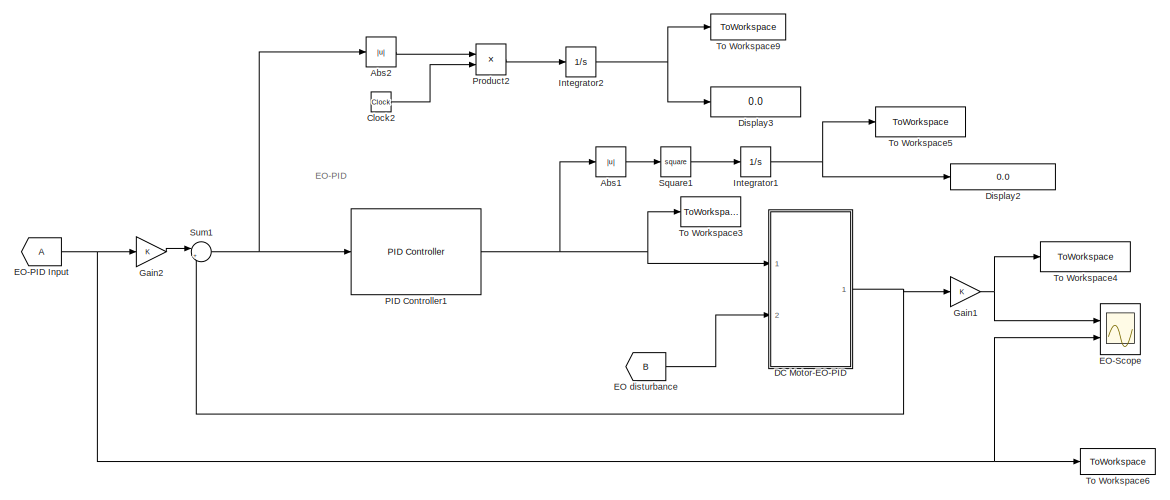
[diagram: root canvas - part 1/8, top right region]
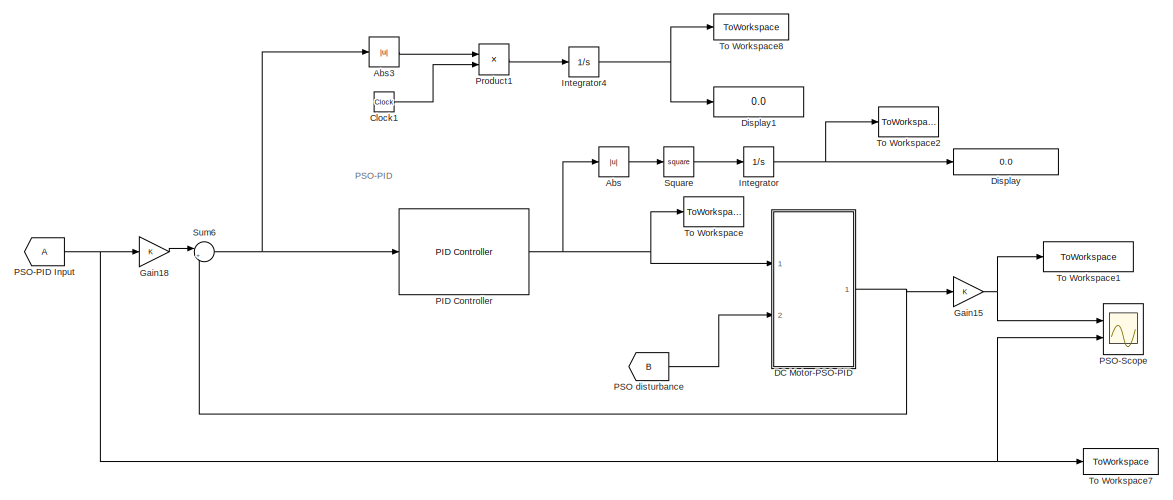
[diagram: root canvas - part 2/8, top right region]
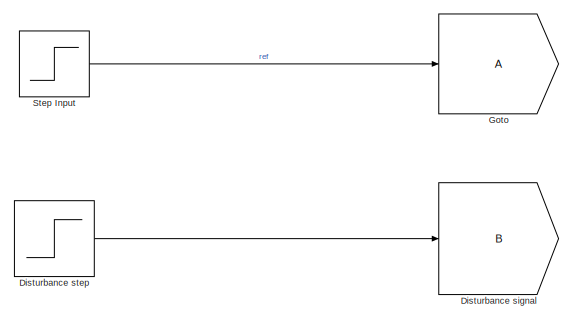
[diagram: root canvas - part 3/8, top left region]
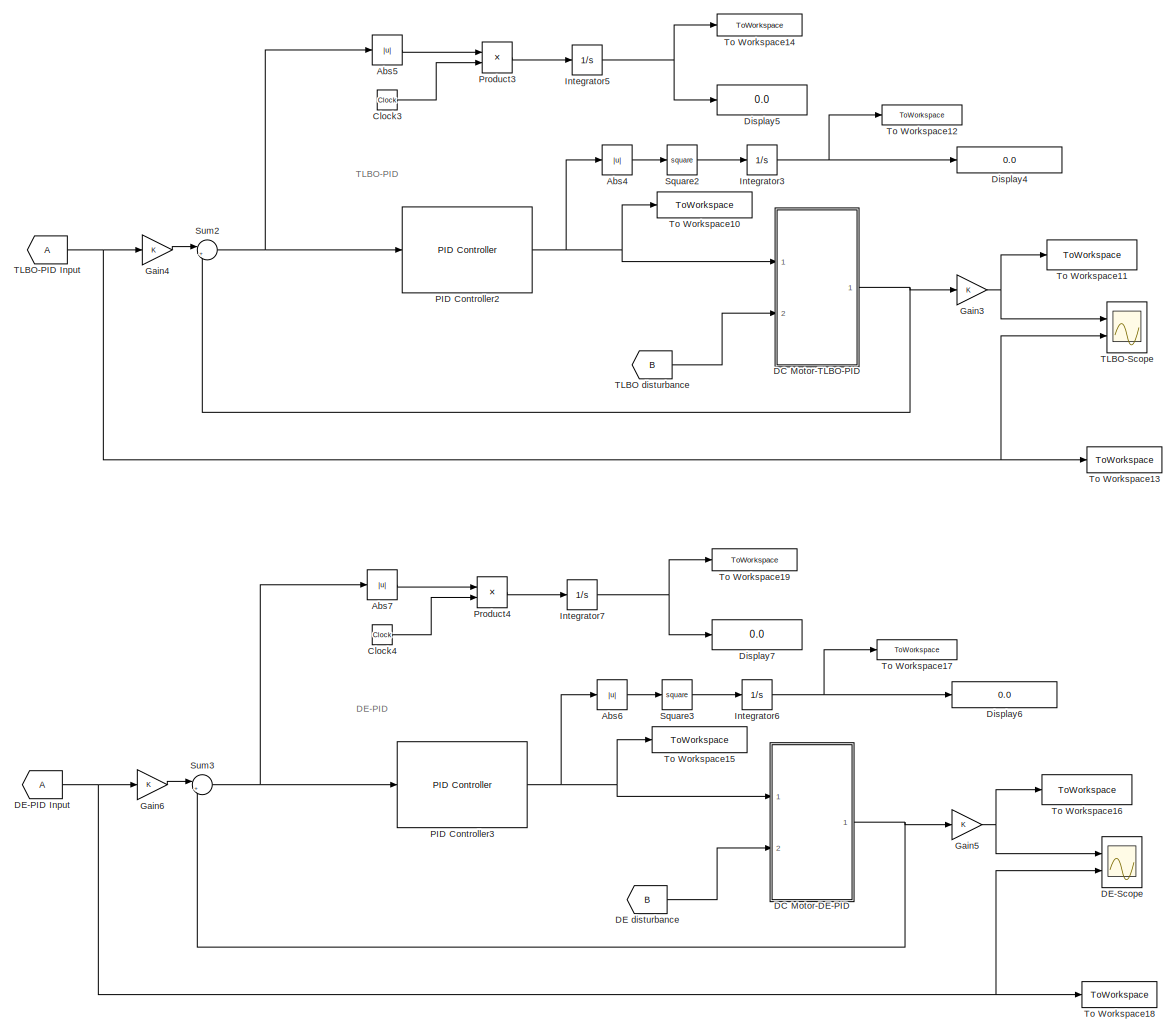
[diagram: root canvas - part 4/8, middle right region]
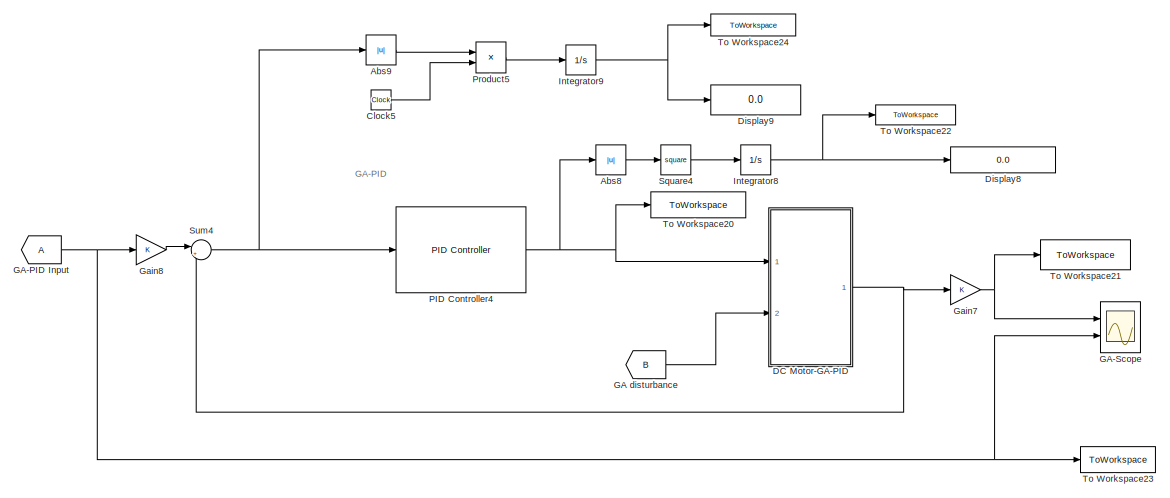
[diagram: root canvas - part 5/8, middle right region]
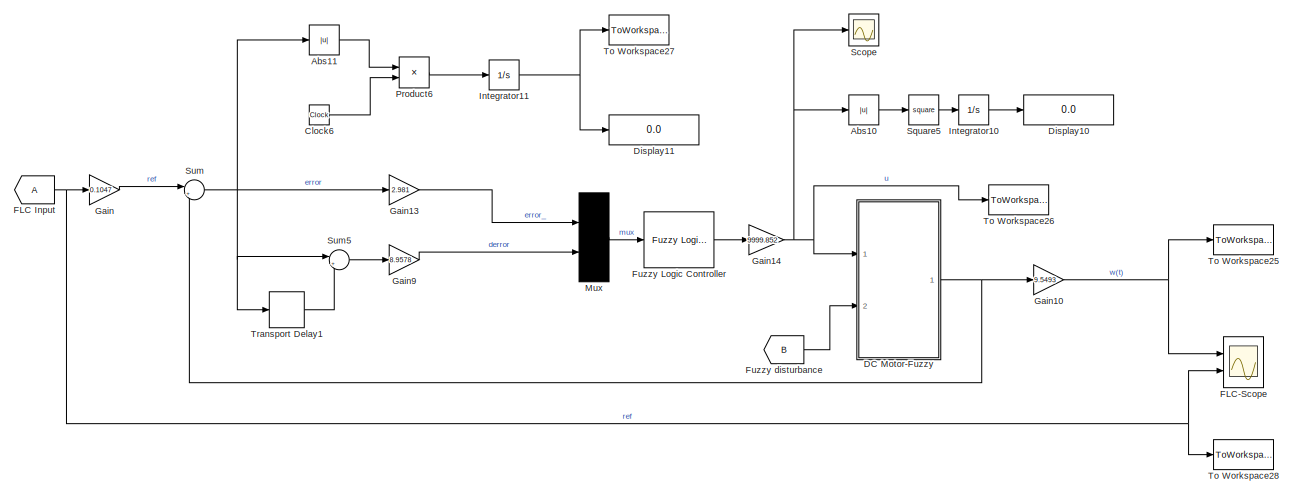
[diagram: root canvas - part 6/8, bottom right region]
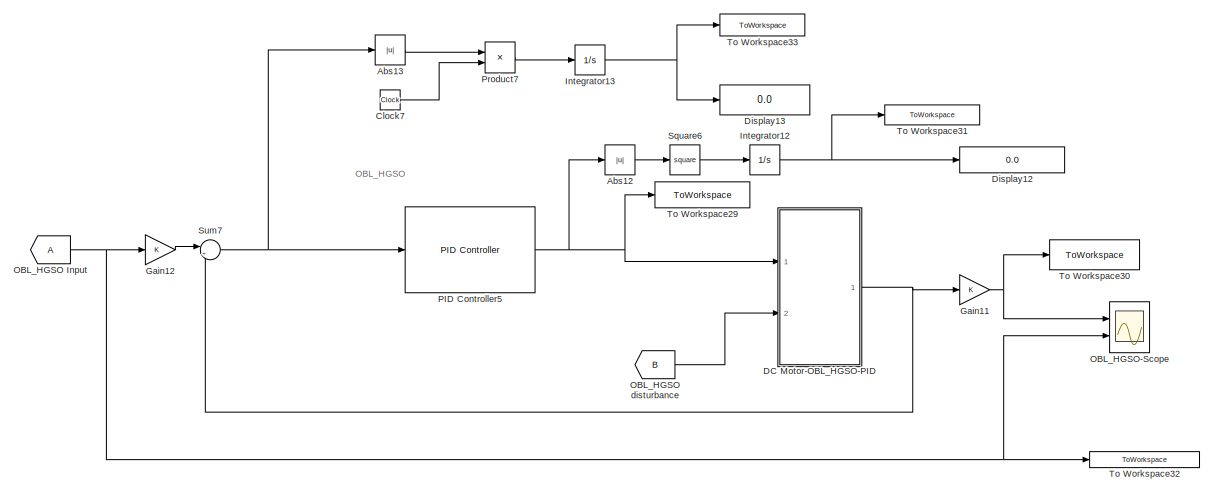
[diagram: root canvas - part 7/8, bottom right region]
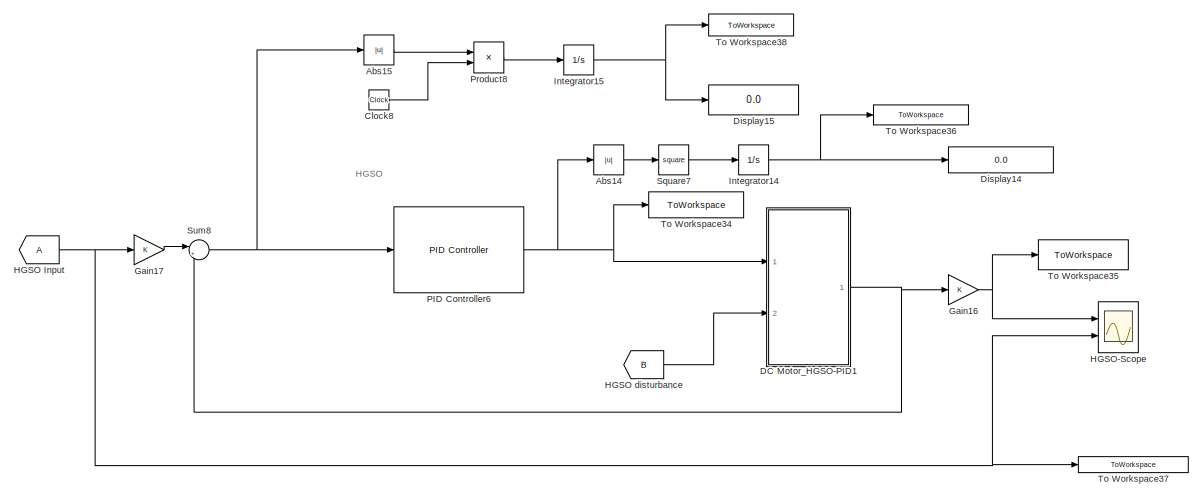
[diagram: root canvas - part 8/8, bottom right region]
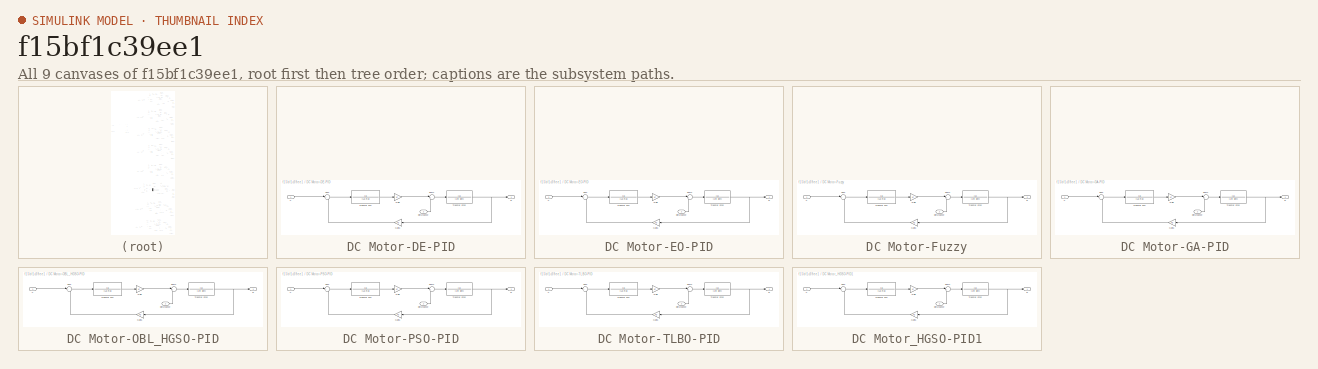
[diagram: thumbnail index - all 9 canvases of the model, root first then tree order]
MODEL slx_f15bf1c39ee1
KIND model
CONFIG AbsTol = auto
CONFIG EnableMultiTasking = off
CONFIG FixedStep = 1e-6
CONFIG MaxStep = auto
CONFIG MinStep = auto
CONFIG RelTol = 1e-5
CONFIG SampleTimeConstraint = Unconstrained
CONFIG Solver = VariableStepAuto
CONFIG SolverName = VariableStepAuto
CONFIG StartTime = 0.0
CONFIG StopTime = 1.2
BLOCK [Abs] Abs
  SaturateOnIntegerOverflow = off
BLOCK [Abs] Abs1
  SaturateOnIntegerOverflow = off
BLOCK [Abs] Abs10
  SaturateOnIntegerOverflow = off
BLOCK [Abs] Abs11
  SaturateOnIntegerOverflow = off
BLOCK [Abs] Abs12
  SaturateOnIntegerOverflow = off
BLOCK [Abs] Abs13
  SaturateOnIntegerOverflow = off
BLOCK [Abs] Abs14
  SaturateOnIntegerOverflow = off
BLOCK [Abs] Abs15
  SaturateOnIntegerOverflow = off
BLOCK [Abs] Abs2
  SaturateOnIntegerOverflow = off
BLOCK [Abs] Abs3
  SaturateOnIntegerOverflow = off
BLOCK [Abs] Abs4
  SaturateOnIntegerOverflow = off
BLOCK [Abs] Abs5
  SaturateOnIntegerOverflow = off
BLOCK [Abs] Abs6
  SaturateOnIntegerOverflow = off
BLOCK [Abs] Abs7
  SaturateOnIntegerOverflow = off
BLOCK [Abs] Abs8
  SaturateOnIntegerOverflow = off
BLOCK [Abs] Abs9
  SaturateOnIntegerOverflow = off
BLOCK [Clock] Clock1
BLOCK [Clock] Clock2
BLOCK [Clock] Clock3
BLOCK [Clock] Clock4
BLOCK [Clock] Clock5
BLOCK [Clock] Clock6
BLOCK [Clock] Clock7
BLOCK [Clock] Clock8
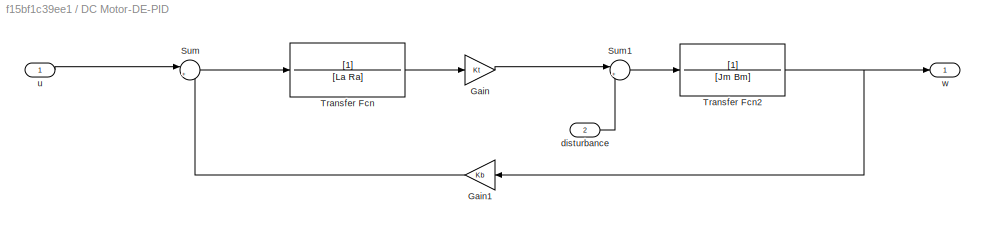
BLOCK [SubSystem] DC Motor-DE-PID
  Ports = [2, 1]
  RequestExecContextInheritance = off
BLOCK [Gain] DC Motor-DE-PID/Gain
  Gain = Kt
  OutDataTypeStr = Inherit: Inherit via internal rule
  ParamDataTypeStr = Inherit: Inherit via internal rule
  SaturateOnIntegerOverflow = off
BLOCK [Gain] DC Motor-DE-PID/Gain1
  Gain = Kb
  OutDataTypeStr = Inherit: Inherit via internal rule
  ParamDataTypeStr = Inherit: Inherit via internal rule
  SaturateOnIntegerOverflow = off
BLOCK [Sum] DC Motor-DE-PID/Sum
  IconShape = round
  InputSameDT = off
  Inputs = |+-
  OutDataTypeStr = Inherit: Inherit via internal rule
  Ports = [2, 1]
  SaturateOnIntegerOverflow = off
BLOCK [Sum] DC Motor-DE-PID/Sum1
  IconShape = round
  InputSameDT = off
  Inputs = |+-
  OutDataTypeStr = Inherit: Inherit via internal rule
  Ports = [2, 1]
  SaturateOnIntegerOverflow = off
BLOCK [TransferFcn] DC Motor-DE-PID/Transfer Fcn
  Denominator = [La Ra]
BLOCK [TransferFcn] DC Motor-DE-PID/Transfer Fcn2
  Denominator = [Jm Bm]
BLOCK [Inport] DC Motor-DE-PID/disturbance
  IconDisplay = Port number
  Port = 2
BLOCK [Inport] DC Motor-DE-PID/u
  IconDisplay = Port number
BLOCK [Outport] DC Motor-DE-PID/w
  IconDisplay = Port number
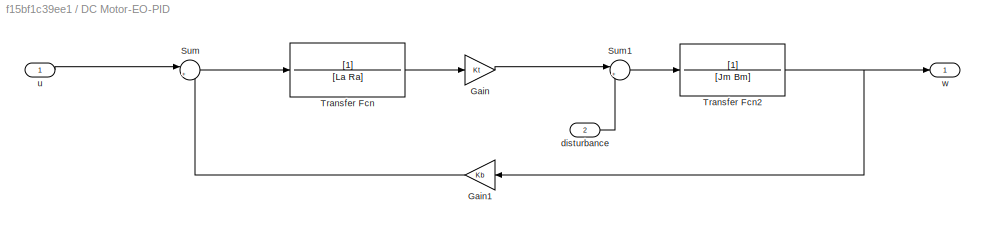
BLOCK [SubSystem] DC Motor-EO-PID
  Ports = [2, 1]
  RequestExecContextInheritance = off
BLOCK [Gain] DC Motor-EO-PID/Gain
  Gain = Kt
  OutDataTypeStr = Inherit: Inherit via internal rule
  ParamDataTypeStr = Inherit: Inherit via internal rule
  SaturateOnIntegerOverflow = off
BLOCK [Gain] DC Motor-EO-PID/Gain1
  Gain = Kb
  OutDataTypeStr = Inherit: Inherit via internal rule
  ParamDataTypeStr = Inherit: Inherit via internal rule
  SaturateOnIntegerOverflow = off
BLOCK [Sum] DC Motor-EO-PID/Sum
  IconShape = round
  InputSameDT = off
  Inputs = |+-
  OutDataTypeStr = Inherit: Inherit via internal rule
  Ports = [2, 1]
  SaturateOnIntegerOverflow = off
BLOCK [Sum] DC Motor-EO-PID/Sum1
  IconShape = round
  InputSameDT = off
  Inputs = |+-
  OutDataTypeStr = Inherit: Inherit via internal rule
  Ports = [2, 1]
  SaturateOnIntegerOverflow = off
BLOCK [TransferFcn] DC Motor-EO-PID/Transfer Fcn
  Denominator = [La Ra]
BLOCK [TransferFcn] DC Motor-EO-PID/Transfer Fcn2
  Denominator = [Jm Bm]
BLOCK [Inport] DC Motor-EO-PID/disturbance
  IconDisplay = Port number
  Port = 2
BLOCK [Inport] DC Motor-EO-PID/u
  IconDisplay = Port number
BLOCK [Outport] DC Motor-EO-PID/w
  IconDisplay = Port number
BLOCK [SubSystem] DC Motor-Fuzzy
  Ports = [2, 1]
  RequestExecContextInheritance = off
BLOCK [Gain] DC Motor-Fuzzy/Gain
  Gain = Kt
  OutDataTypeStr = Inherit: Inherit via internal rule
  ParamDataTypeStr = Inherit: Inherit via internal rule
  SaturateOnIntegerOverflow = off
BLOCK [Gain] DC Motor-Fuzzy/Gain1
  Gain = Kb
  OutDataTypeStr = Inherit: Inherit via internal rule
  ParamDataTypeStr = Inherit: Inherit via internal rule
  SaturateOnIntegerOverflow = off
BLOCK [Sum] DC Motor-Fuzzy/Sum
  IconShape = round
  InputSameDT = off
  Inputs = |+-
  OutDataTypeStr = Inherit: Inherit via internal rule
  Ports = [2, 1]
  SaturateOnIntegerOverflow = off
BLOCK [Sum] DC Motor-Fuzzy/Sum1
  IconShape = round
  InputSameDT = off
  Inputs = |+-
  OutDataTypeStr = Inherit: Inherit via internal rule
  Ports = [2, 1]
  SaturateOnIntegerOverflow = off
BLOCK [TransferFcn] DC Motor-Fuzzy/Transfer Fcn
  Denominator = [La Ra]
BLOCK [TransferFcn] DC Motor-Fuzzy/Transfer Fcn2
  Denominator = [Jm Bm]
BLOCK [Inport] DC Motor-Fuzzy/disturbance
  IconDisplay = Port number
  Port = 2
BLOCK [Inport] DC Motor-Fuzzy/u
  IconDisplay = Port number
BLOCK [Outport] DC Motor-Fuzzy/w
  IconDisplay = Port number
BLOCK [SubSystem] DC Motor-GA-PID
  Ports = [2, 1]
  RequestExecContextInheritance = off
BLOCK [Gain] DC Motor-GA-PID/Gain
  Gain = Kt
  OutDataTypeStr = Inherit: Inherit via internal rule
  ParamDataTypeStr = Inherit: Inherit via internal rule
  SaturateOnIntegerOverflow = off
BLOCK [Gain] DC Motor-GA-PID/Gain1
  Gain = Kb
  OutDataTypeStr = Inherit: Inherit via internal rule
  ParamDataTypeStr = Inherit: Inherit via internal rule
  SaturateOnIntegerOverflow = off
BLOCK [Sum] DC Motor-GA-PID/Sum
  IconShape = round
  InputSameDT = off
  Inputs = |+-
  OutDataTypeStr = Inherit: Inherit via internal rule
  Ports = [2, 1]
  SaturateOnIntegerOverflow = off
BLOCK [Sum] DC Motor-GA-PID/Sum1
  IconShape = round
  InputSameDT = off
  Inputs = |+-
  OutDataTypeStr = Inherit: Inherit via internal rule
  Ports = [2, 1]
  SaturateOnIntegerOverflow = off
BLOCK [TransferFcn] DC Motor-GA-PID/Transfer Fcn
  Denominator = [La Ra]
BLOCK [TransferFcn] DC Motor-GA-PID/Transfer Fcn2
  Denominator = [Jm Bm]
BLOCK [Inport] DC Motor-GA-PID/disturbance
  IconDisplay = Port number
  Port = 2
BLOCK [Inport] DC Motor-GA-PID/u
  IconDisplay = Port number
BLOCK [Outport] DC Motor-GA-PID/w
  IconDisplay = Port number
BLOCK [SubSystem] DC Motor-OBL_HGSO-PID
  Ports = [2, 1]
  RequestExecContextInheritance = off
BLOCK [Gain] DC Motor-OBL_HGSO-PID/Gain
  Gain = Kt
  OutDataTypeStr = Inherit: Inherit via internal rule
  ParamDataTypeStr = Inherit: Inherit via internal rule
  SaturateOnIntegerOverflow = off
BLOCK [Gain] DC Motor-OBL_HGSO-PID/Gain1
  Gain = Kb
  OutDataTypeStr = Inherit: Inherit via internal rule
  ParamDataTypeStr = Inherit: Inherit via internal rule
  SaturateOnIntegerOverflow = off
BLOCK [Sum] DC Motor-OBL_HGSO-PID/Sum
  IconShape = round
  InputSameDT = off
  Inputs = |+-
  OutDataTypeStr = Inherit: Inherit via internal rule
  Ports = [2, 1]
  SaturateOnIntegerOverflow = off
BLOCK [Sum] DC Motor-OBL_HGSO-PID/Sum1
  IconShape = round
  InputSameDT = off
  Inputs = |+-
  OutDataTypeStr = Inherit: Inherit via internal rule
  Ports = [2, 1]
  SaturateOnIntegerOverflow = off
BLOCK [TransferFcn] DC Motor-OBL_HGSO-PID/Transfer Fcn
  Denominator = [La Ra]
BLOCK [TransferFcn] DC Motor-OBL_HGSO-PID/Transfer Fcn2
  Denominator = [Jm Bm]
BLOCK [Inport] DC Motor-OBL_HGSO-PID/disturbance
  IconDisplay = Port number
  Port = 2
BLOCK [Inport] DC Motor-OBL_HGSO-PID/u
  IconDisplay = Port number
BLOCK [Outport] DC Motor-OBL_HGSO-PID/w
  IconDisplay = Port number
BLOCK [SubSystem] DC Motor-PSO-PID
  Ports = [2, 1]
  RequestExecContextInheritance = off
BLOCK [Gain] DC Motor-PSO-PID/Gain
  Gain = Kt
  OutDataTypeStr = Inherit: Inherit via internal rule
  ParamDataTypeStr = Inherit: Inherit via internal rule
  SaturateOnIntegerOverflow = off
BLOCK [Gain] DC Motor-PSO-PID/Gain1
  Gain = Kb
  OutDataTypeStr = Inherit: Inherit via internal rule
  ParamDataTypeStr = Inherit: Inherit via internal rule
  SaturateOnIntegerOverflow = off
BLOCK [Sum] DC Motor-PSO-PID/Sum
  IconShape = round
  InputSameDT = off
  Inputs = |+-
  OutDataTypeStr = Inherit: Inherit via internal rule
  Ports = [2, 1]
  SaturateOnIntegerOverflow = off
BLOCK [Sum] DC Motor-PSO-PID/Sum1
  IconShape = round
  InputSameDT = off
  Inputs = |+-
  OutDataTypeStr = Inherit: Inherit via internal rule
  Ports = [2, 1]
  SaturateOnIntegerOverflow = off
BLOCK [TransferFcn] DC Motor-PSO-PID/Transfer Fcn
  Denominator = [La Ra]
BLOCK [TransferFcn] DC Motor-PSO-PID/Transfer Fcn2
  Denominator = [Jm Bm]
BLOCK [Inport] DC Motor-PSO-PID/disturbance
  IconDisplay = Port number
  Port = 2
BLOCK [Inport] DC Motor-PSO-PID/u
  IconDisplay = Port number
BLOCK [Outport] DC Motor-PSO-PID/w
  IconDisplay = Port number
BLOCK [SubSystem] DC Motor-TLBO-PID
  Ports = [2, 1]
  RequestExecContextInheritance = off
BLOCK [Gain] DC Motor-TLBO-PID/Gain
  Gain = Kt
  OutDataTypeStr = Inherit: Inherit via internal rule
  ParamDataTypeStr = Inherit: Inherit via internal rule
  SaturateOnIntegerOverflow = off
BLOCK [Gain] DC Motor-TLBO-PID/Gain1
  Gain = Kb
  OutDataTypeStr = Inherit: Inherit via internal rule
  ParamDataTypeStr = Inherit: Inherit via internal rule
  SaturateOnIntegerOverflow = off
BLOCK [Sum] DC Motor-TLBO-PID/Sum
  IconShape = round
  InputSameDT = off
  Inputs = |+-
  OutDataTypeStr = Inherit: Inherit via internal rule
  Ports = [2, 1]
  SaturateOnIntegerOverflow = off
BLOCK [Sum] DC Motor-TLBO-PID/Sum1
  IconShape = round
  InputSameDT = off
  Inputs = |+-
  OutDataTypeStr = Inherit: Inherit via internal rule
  Ports = [2, 1]
  SaturateOnIntegerOverflow = off
BLOCK [TransferFcn] DC Motor-TLBO-PID/Transfer Fcn
  Denominator = [La Ra]
BLOCK [TransferFcn] DC Motor-TLBO-PID/Transfer Fcn2
  Denominator = [Jm Bm]
BLOCK [Inport] DC Motor-TLBO-PID/disturbance
  IconDisplay = Port number
  Port = 2
BLOCK [Inport] DC Motor-TLBO-PID/u
  IconDisplay = Port number
BLOCK [Outport] DC Motor-TLBO-PID/w
  IconDisplay = Port number
BLOCK [SubSystem] DC Motor_HGSO-PID1
  Ports = [2, 1]
  RequestExecContextInheritance = off
BLOCK [Gain] DC Motor_HGSO-PID1/Gain
  Gain = Kt
  OutDataTypeStr = Inherit: Inherit via internal rule
  ParamDataTypeStr = Inherit: Inherit via internal rule
  SaturateOnIntegerOverflow = off
BLOCK [Gain] DC Motor_HGSO-PID1/Gain1
  Gain = Kb
  OutDataTypeStr = Inherit: Inherit via internal rule
  ParamDataTypeStr = Inherit: Inherit via internal rule
  SaturateOnIntegerOverflow = off
BLOCK [Sum] DC Motor_HGSO-PID1/Sum
  IconShape = round
  InputSameDT = off
  Inputs = |+-
  OutDataTypeStr = Inherit: Inherit via internal rule
  Ports = [2, 1]
  SaturateOnIntegerOverflow = off
BLOCK [Sum] DC Motor_HGSO-PID1/Sum1
  IconShape = round
  InputSameDT = off
  Inputs = |+-
  OutDataTypeStr = Inherit: Inherit via internal rule
  Ports = [2, 1]
  SaturateOnIntegerOverflow = off
BLOCK [TransferFcn] DC Motor_HGSO-PID1/Transfer Fcn
  Denominator = [La Ra]
BLOCK [TransferFcn] DC Motor_HGSO-PID1/Transfer Fcn2
  Denominator = [Jm Bm]
BLOCK [Inport] DC Motor_HGSO-PID1/disturbance
  IconDisplay = Port number
  Port = 2
BLOCK [Inport] DC Motor_HGSO-PID1/u
  IconDisplay = Port number
BLOCK [Outport] DC Motor_HGSO-PID1/w
  IconDisplay = Port number
BLOCK [From] DE disturbance
  GotoTag = B
BLOCK [From] DE-PID Input
BLOCK [Scope] DE-Scope
  Floating = off
  NumInputPorts = 2
  Ports = [2]
  ScopeSpecificationString = Simulink.scopes.TimeScopeBlockCfg('CurrentConfiguration', extmgr.ConfigurationSet(extmgr.Configuration('Core','General UI',true),extmgr.Configuration('Core','Source UI',true),extmgr.Configuration('Sources','WiredSimulink',true,'DataLoggingVariableName','ScopeData4'),extmgr.Configuration('Visuals','Time Domain',true,'SerializedDisplays',{struct('MinYLimReal','-0.125','MaxYLimReal','1.125','YLabelRe...<+1454ch>
BLOCK [Display] Display
  Decimation = 1
  Ports = [1]
BLOCK [Display] Display1
  Decimation = 1
  Ports = [1]
BLOCK [Display] Display10
  Decimation = 1
  Ports = [1]
BLOCK [Display] Display11
  Decimation = 1
  Ports = [1]
BLOCK [Display] Display12
  Decimation = 1
  Ports = [1]
BLOCK [Display] Display13
  Decimation = 1
  Ports = [1]
BLOCK [Display] Display14
  Decimation = 1
  Ports = [1]
BLOCK [Display] Display15
  Decimation = 1
  Ports = [1]
BLOCK [Display] Display2
  Decimation = 1
  Ports = [1]
BLOCK [Display] Display3
  Decimation = 1
  Ports = [1]
BLOCK [Display] Display4
  Decimation = 1
  Ports = [1]
BLOCK [Display] Display5
  Decimation = 1
  Ports = [1]
BLOCK [Display] Display6
  Decimation = 1
  Ports = [1]
BLOCK [Display] Display7
  Decimation = 1
  Ports = [1]
BLOCK [Display] Display8
  Decimation = 1
  Ports = [1]
BLOCK [Display] Display9
  Decimation = 1
  Ports = [1]
BLOCK [Goto] Disturbance signal
  GotoTag = B
BLOCK [Step] Disturbance step
  After = 0
  SampleTime = 0
  Time = 0
BLOCK [From] EO disturbance
  GotoTag = B
BLOCK [From] EO-PID Input
BLOCK [Scope] EO-Scope
  Floating = off
  NumInputPorts = 2
  Ports = [2]
  ScopeSpecificationString = Simulink.scopes.TimeScopeBlockCfg('CurrentConfiguration', extmgr.ConfigurationSet(extmgr.Configuration('Core','General UI',true),extmgr.Configuration('Core','Source UI',true),extmgr.Configuration('Sources','WiredSimulink',true),extmgr.Configuration('Visuals','Time Domain',true,'SerializedDisplays',{struct('MinYLimReal','-0.13643','MaxYLimReal','1.12627','YLabelReal','','MinYLimMag','0.00000','MaxY...<+1427ch>
BLOCK [From] FLC Input
BLOCK [Scope] FLC-Scope
  Floating = off
  NumInputPorts = 2
  Ports = [2]
  ScopeSpecificationString = Simulink.scopes.TimeScopeBlockCfg('CurrentConfiguration', extmgr.ConfigurationSet(extmgr.Configuration('Core','General UI',true),extmgr.Configuration('Core','Source UI',true),extmgr.Configuration('Sources','WiredSimulink',true,'DataLoggingVariableName','ScopeData1'),extmgr.Configuration('Visuals','Time Domain',true,'SerializedDisplays',{struct('MinYLimReal','-0.125','MaxYLimReal','1.125','YLabelRe...<+1475ch>
BLOCK [Reference] Fuzzy Logic Controller  REF=fuzblock/Fuzzy Logic   (lib defined in mdl_858b3b3e7478)
Controller
  Ports = [1, 1]
  SourceBlock = fuzblock/Fuzzy Logic \nController
  SourceProductBaseCode = FL
  SourceProductName = Fuzzy Logic Toolbox
  SourceType = Fuzzy Inference System
BLOCK [From] Fuzzy disturbance
  GotoTag = B
BLOCK [From] GA disturbance
  GotoTag = B
BLOCK [From] GA-PID Input
BLOCK [Scope] GA-Scope
  Floating = off
  NumInputPorts = 2
  Ports = [2]
  ScopeSpecificationString = Simulink.scopes.TimeScopeBlockCfg('CurrentConfiguration', extmgr.ConfigurationSet(extmgr.Configuration('Core','General UI',true),extmgr.Configuration('Core','Source UI',true),extmgr.Configuration('Sources','WiredSimulink',true,'DataLoggingVariableName','ScopeData5'),extmgr.Configuration('Visuals','Time Domain',true,'SerializedDisplays',{struct('MinYLimReal','-0.125','MaxYLimReal','1.125','YLabelRe...<+1454ch>
BLOCK [Gain] Gain
  Gain = 0.1047
  OutDataTypeStr = Inherit: Inherit via internal rule
  ParamDataTypeStr = Inherit: Inherit via internal rule
  SaturateOnIntegerOverflow = off
BLOCK [Gain] Gain1
  OutDataTypeStr = Inherit: Inherit via internal rule
  ParamDataTypeStr = Inherit: Inherit via internal rule
  SaturateOnIntegerOverflow = off
BLOCK [Gain] Gain10
  Gain = 9.5493
  OutDataTypeStr = Inherit: Inherit via internal rule
  ParamDataTypeStr = Inherit: Inherit via internal rule
  SaturateOnIntegerOverflow = off
BLOCK [Gain] Gain11
  OutDataTypeStr = Inherit: Inherit via internal rule
  ParamDataTypeStr = Inherit: Inherit via internal rule
  SaturateOnIntegerOverflow = off
BLOCK [Gain] Gain12
  OutDataTypeStr = Inherit: Inherit via internal rule
  ParamDataTypeStr = Inherit: Inherit via internal rule
  SaturateOnIntegerOverflow = off
BLOCK [Gain] Gain13
  Gain = 2.981
  OutDataTypeStr = Inherit: Inherit via internal rule
  ParamDataTypeStr = Inherit: Inherit via internal rule
  SaturateOnIntegerOverflow = off
BLOCK [Gain] Gain14
  Gain = 9999.852
  OutDataTypeStr = Inherit: Inherit via internal rule
  ParamDataTypeStr = Inherit: Inherit via internal rule
  SaturateOnIntegerOverflow = off
BLOCK [Gain] Gain15
  OutDataTypeStr = Inherit: Inherit via internal rule
  ParamDataTypeStr = Inherit: Inherit via internal rule
  SaturateOnIntegerOverflow = off
BLOCK [Gain] Gain16
  OutDataTypeStr = Inherit: Inherit via internal rule
  ParamDataTypeStr = Inherit: Inherit via internal rule
  SaturateOnIntegerOverflow = off
BLOCK [Gain] Gain17
  OutDataTypeStr = Inherit: Inherit via internal rule
  ParamDataTypeStr = Inherit: Inherit via internal rule
  SaturateOnIntegerOverflow = off
BLOCK [Gain] Gain18
  OutDataTypeStr = Inherit: Inherit via internal rule
  ParamDataTypeStr = Inherit: Inherit via internal rule
  SaturateOnIntegerOverflow = off
BLOCK [Gain] Gain2
  OutDataTypeStr = Inherit: Inherit via internal rule
  ParamDataTypeStr = Inherit: Inherit via internal rule
  SaturateOnIntegerOverflow = off
BLOCK [Gain] Gain3
  OutDataTypeStr = Inherit: Inherit via internal rule
  ParamDataTypeStr = Inherit: Inherit via internal rule
  SaturateOnIntegerOverflow = off
BLOCK [Gain] Gain4
  OutDataTypeStr = Inherit: Inherit via internal rule
  ParamDataTypeStr = Inherit: Inherit via internal rule
  SaturateOnIntegerOverflow = off
BLOCK [Gain] Gain5
  OutDataTypeStr = Inherit: Inherit via internal rule
  ParamDataTypeStr = Inherit: Inherit via internal rule
  SaturateOnIntegerOverflow = off
BLOCK [Gain] Gain6
  OutDataTypeStr = Inherit: Inherit via internal rule
  ParamDataTypeStr = Inherit: Inherit via internal rule
  SaturateOnIntegerOverflow = off
BLOCK [Gain] Gain7
  OutDataTypeStr = Inherit: Inherit via internal rule
  ParamDataTypeStr = Inherit: Inherit via internal rule
  SaturateOnIntegerOverflow = off
BLOCK [Gain] Gain8
  OutDataTypeStr = Inherit: Inherit via internal rule
  ParamDataTypeStr = Inherit: Inherit via internal rule
  SaturateOnIntegerOverflow = off
BLOCK [Gain] Gain9
  Gain = 8.9578
  OutDataTypeStr = Inherit: Inherit via internal rule
  ParamDataTypeStr = Inherit: Inherit via internal rule
  SaturateOnIntegerOverflow = off
BLOCK [Goto] Goto
BLOCK [From] HGSO Input
BLOCK [From] HGSO disturbance
  GotoTag = B
BLOCK [Scope] HGSO-Scope
  Floating = off
  NumInputPorts = 2
  Ports = [2]
  ScopeSpecificationString = Simulink.scopes.TimeScopeBlockCfg('CurrentConfiguration', extmgr.ConfigurationSet(extmgr.Configuration('Core','General UI',true),extmgr.Configuration('Core','Source UI',true),extmgr.Configuration('Sources','WiredSimulink',true,'DataLoggingVariableName','ScopeData2'),extmgr.Configuration('Visuals','Time Domain',true,'SerializedDisplays',{struct('MinYLimReal','-0.125','MaxYLimReal','1.125','YLabelRe...<+1454ch>
BLOCK [Integrator] Integrator
  Ports = [1, 1]
BLOCK [Integrator] Integrator1
  Ports = [1, 1]
BLOCK [Integrator] Integrator10
  Ports = [1, 1]
BLOCK [Integrator] Integrator11
  Ports = [1, 1]
BLOCK [Integrator] Integrator12
  Ports = [1, 1]
BLOCK [Integrator] Integrator13
  Ports = [1, 1]
BLOCK [Integrator] Integrator14
  Ports = [1, 1]
BLOCK [Integrator] Integrator15
  Ports = [1, 1]
BLOCK [Integrator] Integrator2
  Ports = [1, 1]
BLOCK [Integrator] Integrator3
  Ports = [1, 1]
BLOCK [Integrator] Integrator4
  Ports = [1, 1]
BLOCK [Integrator] Integrator5
  Ports = [1, 1]
BLOCK [Integrator] Integrator6
  Ports = [1, 1]
BLOCK [Integrator] Integrator7
  Ports = [1, 1]
BLOCK [Integrator] Integrator8
  Ports = [1, 1]
BLOCK [Integrator] Integrator9
  Ports = [1, 1]
BLOCK [Mux] Mux
  Inputs = 2
  Ports = [2, 1]
BLOCK [From] OBL_HGSO Input
BLOCK [From] OBL_HGSO disturbance
  GotoTag = B
BLOCK [Scope] OBL_HGSO-Scope
  Floating = off
  NumInputPorts = 2
  Ports = [2]
  ScopeSpecificationString = Simulink.scopes.TimeScopeBlockCfg('CurrentConfiguration', extmgr.ConfigurationSet(extmgr.Configuration('Core','General UI',true),extmgr.Configuration('Core','Source UI',true),extmgr.Configuration('Sources','WiredSimulink',true,'DataLoggingVariableName','ScopeData1'),extmgr.Configuration('Visuals','Time Domain',true,'SerializedDisplays',{struct('MinYLimReal','-0.125','MaxYLimReal','1.125','YLabelRe...<+1454ch>
BLOCK [Reference] PID Controller  REF=simulink/Continuous/PID Controller
  Ports = [1, 1]
  SourceBlock = simulink/Continuous/PID Controller
  SourceProductBaseCode = SL
  SourceProductName = Simulink
  SourceType = PID 1dof
BLOCK [Reference] PID Controller1  REF=simulink/Continuous/PID Controller
  Ports = [1, 1]
  SourceBlock = simulink/Continuous/PID Controller
  SourceProductBaseCode = SL
  SourceProductName = Simulink
  SourceType = PID 1dof
BLOCK [Reference] PID Controller2  REF=simulink/Continuous/PID Controller
  Ports = [1, 1]
  SourceBlock = simulink/Continuous/PID Controller
  SourceProductBaseCode = SL
  SourceProductName = Simulink
  SourceType = PID 1dof
BLOCK [Reference] PID Controller3  REF=simulink/Continuous/PID Controller
  Ports = [1, 1]
  SourceBlock = simulink/Continuous/PID Controller
  SourceProductBaseCode = SL
  SourceProductName = Simulink
  SourceType = PID 1dof
BLOCK [Reference] PID Controller4  REF=simulink/Continuous/PID Controller
  Ports = [1, 1]
  SourceBlock = simulink/Continuous/PID Controller
  SourceProductBaseCode = SL
  SourceProductName = Simulink
  SourceType = PID 1dof
BLOCK [Reference] PID Controller5  REF=simulink/Continuous/PID Controller
  Ports = [1, 1]
  SourceBlock = simulink/Continuous/PID Controller
  SourceProductBaseCode = SL
  SourceProductName = Simulink
  SourceType = PID 1dof
BLOCK [Reference] PID Controller6  REF=simulink/Continuous/PID Controller
  Ports = [1, 1]
  SourceBlock = simulink/Continuous/PID Controller
  SourceProductBaseCode = SL
  SourceProductName = Simulink
  SourceType = PID 1dof
BLOCK [From] PSO disturbance
  GotoTag = B
BLOCK [From] PSO-PID Input
BLOCK [Scope] PSO-Scope
  Floating = off
  NumInputPorts = 2
  Ports = [2]
  ScopeSpecificationString = Simulink.scopes.TimeScopeBlockCfg('CurrentConfiguration', extmgr.ConfigurationSet(extmgr.Configuration('Core','General UI',true),extmgr.Configuration('Core','Source UI',true),extmgr.Configuration('Sources','WiredSimulink',true,'DataLoggingVariableName','ScopeData1'),extmgr.Configuration('Visuals','Time Domain',true,'SerializedDisplays',{struct('MinYLimReal','-0.13466','MaxYLimReal','1.13561','YLab...<+1467ch>
BLOCK [Product] Product1
  InputSameDT = off
  OutDataTypeStr = Inherit: Inherit via internal rule
  Ports = [2, 1]
  RndMeth = Floor
  SaturateOnIntegerOverflow = off
BLOCK [Product] Product2
  InputSameDT = off
  OutDataTypeStr = Inherit: Inherit via internal rule
  Ports = [2, 1]
  RndMeth = Floor
  SaturateOnIntegerOverflow = off
BLOCK [Product] Product3
  InputSameDT = off
  OutDataTypeStr = Inherit: Inherit via internal rule
  Ports = [2, 1]
  RndMeth = Floor
  SaturateOnIntegerOverflow = off
BLOCK [Product] Product4
  InputSameDT = off
  OutDataTypeStr = Inherit: Inherit via internal rule
  Ports = [2, 1]
  RndMeth = Floor
  SaturateOnIntegerOverflow = off
BLOCK [Product] Product5
  InputSameDT = off
  OutDataTypeStr = Inherit: Inherit via internal rule
  Ports = [2, 1]
  RndMeth = Floor
  SaturateOnIntegerOverflow = off
BLOCK [Product] Product6
  InputSameDT = off
  OutDataTypeStr = Inherit: Inherit via internal rule
  Ports = [2, 1]
  RndMeth = Floor
  SaturateOnIntegerOverflow = off
BLOCK [Product] Product7
  InputSameDT = off
  OutDataTypeStr = Inherit: Inherit via internal rule
  Ports = [2, 1]
  RndMeth = Floor
  SaturateOnIntegerOverflow = off
BLOCK [Product] Product8
  InputSameDT = off
  OutDataTypeStr = Inherit: Inherit via internal rule
  Ports = [2, 1]
  RndMeth = Floor
  SaturateOnIntegerOverflow = off
BLOCK [Scope] Scope
  Floating = off
  NumInputPorts = 1
  Ports = [1]
  ScopeSpecificationString = Simulink.scopes.TimeScopeBlockCfg('CurrentConfiguration', extmgr.ConfigurationSet(extmgr.Configuration('Core','General UI',true),extmgr.Configuration('Core','Source UI',true),extmgr.Configuration('Sources','WiredSimulink',true,'DataLoggingVariableName','ScopeData1'),extmgr.Configuration('Visuals','Time Domain',true),extmgr.Configuration('Tools','Plot Navigation',true),extmgr.Configuration('Tools',...<+40ch>
BLOCK [Math] Square
  Operator = square
  Ports = [1, 1]
BLOCK [Math] Square1
  Operator = square
  Ports = [1, 1]
BLOCK [Math] Square2
  Operator = square
  Ports = [1, 1]
BLOCK [Math] Square3
  Operator = square
  Ports = [1, 1]
BLOCK [Math] Square4
  Operator = square
  Ports = [1, 1]
BLOCK [Math] Square5
  Operator = square
  Ports = [1, 1]
BLOCK [Math] Square6
  Operator = square
  Ports = [1, 1]
BLOCK [Math] Square7
  Operator = square
  Ports = [1, 1]
BLOCK [Step] Step Input
  SampleTime = 0
  Time = 0
BLOCK [Sum] Sum
  IconShape = round
  InputSameDT = off
  Inputs = |+-
  OutDataTypeStr = Inherit: Inherit via internal rule
  Ports = [2, 1]
  SaturateOnIntegerOverflow = off
BLOCK [Sum] Sum1
  IconShape = round
  InputSameDT = off
  Inputs = |+-
  OutDataTypeStr = Inherit: Inherit via internal rule
  Ports = [2, 1]
  SaturateOnIntegerOverflow = off
BLOCK [Sum] Sum2
  IconShape = round
  InputSameDT = off
  Inputs = |+-
  OutDataTypeStr = Inherit: Inherit via internal rule
  Ports = [2, 1]
  SaturateOnIntegerOverflow = off
BLOCK [Sum] Sum3
  IconShape = round
  InputSameDT = off
  Inputs = |+-
  OutDataTypeStr = Inherit: Inherit via internal rule
  Ports = [2, 1]
  SaturateOnIntegerOverflow = off
BLOCK [Sum] Sum4
  IconShape = round
  InputSameDT = off
  Inputs = |+-
  OutDataTypeStr = Inherit: Inherit via internal rule
  Ports = [2, 1]
  SaturateOnIntegerOverflow = off
BLOCK [Sum] Sum5
  IconShape = round
  InputSameDT = off
  Inputs = |+-
  OutDataTypeStr = Inherit: Inherit via internal rule
  Ports = [2, 1]
  SaturateOnIntegerOverflow = off
BLOCK [Sum] Sum6
  IconShape = round
  InputSameDT = off
  Inputs = |+-
  OutDataTypeStr = Inherit: Inherit via internal rule
  Ports = [2, 1]
  SaturateOnIntegerOverflow = off
BLOCK [Sum] Sum7
  IconShape = round
  InputSameDT = off
  Inputs = |+-
  OutDataTypeStr = Inherit: Inherit via internal rule
  Ports = [2, 1]
  SaturateOnIntegerOverflow = off
BLOCK [Sum] Sum8
  IconShape = round
  InputSameDT = off
  Inputs = |+-
  OutDataTypeStr = Inherit: Inherit via internal rule
  Ports = [2, 1]
  SaturateOnIntegerOverflow = off
BLOCK [From] TLBO disturbance
  GotoTag = B
BLOCK [From] TLBO-PID Input 
BLOCK [Scope] TLBO-Scope
  Floating = off
  NumInputPorts = 2
  Ports = [2]
  ScopeSpecificationString = Simulink.scopes.TimeScopeBlockCfg('CurrentConfiguration', extmgr.ConfigurationSet(extmgr.Configuration('Core','General UI',true),extmgr.Configuration('Core','Source UI',true),extmgr.Configuration('Sources','WiredSimulink',true,'DataLoggingVariableName','ScopeData3'),extmgr.Configuration('Visuals','Time Domain',true,'SerializedDisplays',{struct('MinYLimReal','0.99694','MaxYLimReal','1.00104','YLabe...<+1466ch>
BLOCK [ToWorkspace] To Workspace
  FixptAsFi = on
  MaxDataPoints = inf
  Ports = [1]
  SampleTime = -1
  SaveFormat = Timeseries
  VariableName = u_signal_PSO
BLOCK [ToWorkspace] To Workspace1
  FixptAsFi = on
  MaxDataPoints = inf
  Ports = [1]
  SampleTime = -1
  SaveFormat = Timeseries
  VariableName = w_out_PSO_PID
BLOCK [ToWorkspace] To Workspace10
  FixptAsFi = on
  MaxDataPoints = inf
  Ports = [1]
  SampleTime = -1
  SaveFormat = Timeseries
  VariableName = u_signal_TLBO
BLOCK [ToWorkspace] To Workspace11
  FixptAsFi = on
  MaxDataPoints = inf
  Ports = [1]
  SampleTime = -1
  SaveFormat = Timeseries
  VariableName = w_out_TLBO_PID
BLOCK [ToWorkspace] To Workspace12
  FixptAsFi = on
  MaxDataPoints = inf
  Ports = [1]
  SampleTime = -1
  SaveFormat = Timeseries
  VariableName = u_energy_TLBO
BLOCK [ToWorkspace] To Workspace13
  FixptAsFi = on
  MaxDataPoints = inf
  Ports = [1]
  SampleTime = -1
  SaveFormat = Timeseries
  VariableName = w_ref_TLBO_PID
BLOCK [ToWorkspace] To Workspace14
  FixptAsFi = on
  MaxDataPoints = inf
  Ports = [1]
  SampleTime = -1
  SaveFormat = Timeseries
  VariableName = ITAE_TLBO
BLOCK [ToWorkspace] To Workspace15
  FixptAsFi = on
  MaxDataPoints = inf
  Ports = [1]
  SampleTime = -1
  SaveFormat = Timeseries
  VariableName = u_signal_DE
BLOCK [ToWorkspace] To Workspace16
  FixptAsFi = on
  MaxDataPoints = inf
  Ports = [1]
  SampleTime = -1
  SaveFormat = Timeseries
  VariableName = w_out_DE_PID
BLOCK [ToWorkspace] To Workspace17
  FixptAsFi = on
  MaxDataPoints = inf
  Ports = [1]
  SampleTime = -1
  SaveFormat = Timeseries
  VariableName = u_energy_DE
BLOCK [ToWorkspace] To Workspace18
  FixptAsFi = on
  MaxDataPoints = inf
  Ports = [1]
  SampleTime = -1
  SaveFormat = Timeseries
  VariableName = w_ref_DE_PID
BLOCK [ToWorkspace] To Workspace19
  FixptAsFi = on
  MaxDataPoints = inf
  Ports = [1]
  SampleTime = -1
  SaveFormat = Timeseries
  VariableName = ITAE_DE
BLOCK [ToWorkspace] To Workspace2
  FixptAsFi = on
  MaxDataPoints = inf
  Ports = [1]
  SampleTime = -1
  SaveFormat = Timeseries
  VariableName = u_energy_PSO
BLOCK [ToWorkspace] To Workspace20
  FixptAsFi = on
  MaxDataPoints = inf
  Ports = [1]
  SampleTime = -1
  SaveFormat = Timeseries
  VariableName = u_signal_GA
BLOCK [ToWorkspace] To Workspace21
  FixptAsFi = on
  MaxDataPoints = inf
  Ports = [1]
  SampleTime = -1
  SaveFormat = Timeseries
  VariableName = w_out_GA_PID
BLOCK [ToWorkspace] To Workspace22
  FixptAsFi = on
  MaxDataPoints = inf
  Ports = [1]
  SampleTime = -1
  SaveFormat = Timeseries
  VariableName = u_energy_GA
BLOCK [ToWorkspace] To Workspace23
  FixptAsFi = on
  MaxDataPoints = inf
  Ports = [1]
  SampleTime = -1
  SaveFormat = Timeseries
  VariableName = w_ref_GA_PID
BLOCK [ToWorkspace] To Workspace24
  FixptAsFi = on
  MaxDataPoints = inf
  Ports = [1]
  SampleTime = -1
  SaveFormat = Timeseries
  VariableName = ITAE_GA
BLOCK [ToWorkspace] To Workspace25
  FixptAsFi = on
  MaxDataPoints = inf
  Ports = [1]
  SampleTime = -1
  SaveFormat = Timeseries
  VariableName = w_out_FLC
BLOCK [ToWorkspace] To Workspace26
  FixptAsFi = on
  MaxDataPoints = inf
  Ports = [1]
  SampleTime = -1
  SaveFormat = Timeseries
  VariableName = u_fuzzy
BLOCK [ToWorkspace] To Workspace27
  FixptAsFi = on
  MaxDataPoints = inf
  Ports = [1]
  SampleTime = -1
  SaveFormat = Timeseries
  VariableName = ITAE_Fuzzy
BLOCK [ToWorkspace] To Workspace28
  FixptAsFi = on
  MaxDataPoints = inf
  Ports = [1]
  SampleTime = -1
  SaveFormat = Timeseries
  VariableName = w_ref_FLC
BLOCK [ToWorkspace] To Workspace29
  FixptAsFi = on
  MaxDataPoints = inf
  Ports = [1]
  SampleTime = -1
  SaveFormat = Timeseries
  VariableName = u_signal_OBL_HGSO
BLOCK [ToWorkspace] To Workspace3
  FixptAsFi = on
  MaxDataPoints = inf
  Ports = [1]
  SampleTime = -1
  SaveFormat = Timeseries
  VariableName = u_signal_EO
BLOCK [ToWorkspace] To Workspace30
  FixptAsFi = on
  MaxDataPoints = inf
  Ports = [1]
  SampleTime = -1
  SaveFormat = Timeseries
  VariableName = w_out_OBL_HGSO_PID
BLOCK [ToWorkspace] To Workspace31
  FixptAsFi = on
  MaxDataPoints = inf
  Ports = [1]
  SampleTime = -1
  SaveFormat = Timeseries
  VariableName = u_energy_OBL_HGSO
BLOCK [ToWorkspace] To Workspace32
  FixptAsFi = on
  MaxDataPoints = inf
  Ports = [1]
  SampleTime = -1
  SaveFormat = Timeseries
  VariableName = w_ref_OBL_HGSO_PID
BLOCK [ToWorkspace] To Workspace33
  FixptAsFi = on
  MaxDataPoints = inf
  Ports = [1]
  SampleTime = -1
  SaveFormat = Timeseries
  VariableName = ITAE_OBL_HGSO
BLOCK [ToWorkspace] To Workspace34
  FixptAsFi = on
  MaxDataPoints = inf
  Ports = [1]
  SampleTime = -1
  SaveFormat = Timeseries
  VariableName = u_signal_HGSO
BLOCK [ToWorkspace] To Workspace35
  FixptAsFi = on
  MaxDataPoints = inf
  Ports = [1]
  SampleTime = -1
  SaveFormat = Timeseries
  VariableName = w_out_HGSO_PID
BLOCK [ToWorkspace] To Workspace36
  FixptAsFi = on
  MaxDataPoints = inf
  Ports = [1]
  SampleTime = -1
  SaveFormat = Timeseries
  VariableName = u_energy_HGSO
BLOCK [ToWorkspace] To Workspace37
  FixptAsFi = on
  MaxDataPoints = inf
  Ports = [1]
  SampleTime = -1
  SaveFormat = Timeseries
  VariableName = w_ref_HGSO_PID
BLOCK [ToWorkspace] To Workspace38
  FixptAsFi = on
  MaxDataPoints = inf
  Ports = [1]
  SampleTime = -1
  SaveFormat = Timeseries
  VariableName = ITAE_HGSO
BLOCK [ToWorkspace] To Workspace4
  FixptAsFi = on
  MaxDataPoints = inf
  Ports = [1]
  SampleTime = -1
  SaveFormat = Timeseries
  VariableName = w_out_EO_PID
BLOCK [ToWorkspace] To Workspace5
  FixptAsFi = on
  MaxDataPoints = inf
  Ports = [1]
  SampleTime = -1
  SaveFormat = Timeseries
  VariableName = u_energy_EO
BLOCK [ToWorkspace] To Workspace6
  FixptAsFi = on
  MaxDataPoints = inf
  Ports = [1]
  SampleTime = -1
  SaveFormat = Timeseries
  VariableName = w_ref_EO_PID
BLOCK [ToWorkspace] To Workspace7
  FixptAsFi = on
  MaxDataPoints = inf
  Ports = [1]
  SampleTime = -1
  SaveFormat = Timeseries
  VariableName = w_ref_PSO_PID
BLOCK [ToWorkspace] To Workspace8
  FixptAsFi = on
  MaxDataPoints = inf
  Ports = [1]
  SampleTime = -1
  SaveFormat = Timeseries
  VariableName = ITAE_PSO
BLOCK [ToWorkspace] To Workspace9
  FixptAsFi = on
  MaxDataPoints = inf
  Ports = [1]
  SampleTime = -1
  SaveFormat = Timeseries
  VariableName = ITAE_EO
BLOCK [TransportDelay] Transport Delay1
  BufferSize = 2048
  DelayTime = 0.00056797432
  Ports = [1, 1]
ANNOTATION (root): DE-PID
ANNOTATION (root): EO-PID
ANNOTATION (root): GA-PID
ANNOTATION (root): HGSO
ANNOTATION (root): OBL_HGSO
ANNOTATION (root): PSO-PID
ANNOTATION (root): TLBO-PID
LINE Abs10:1 -> Square5:1
LINE Abs11:1 -> Product6:1
LINE Abs12:1 -> Square6:1
LINE Abs13:1 -> Product7:1
LINE Abs14:1 -> Square7:1
LINE Abs15:1 -> Product8:1
LINE Abs1:1 -> Square1:1
LINE Abs2:1 -> Product2:1
LINE Abs3:1 -> Product1:1
LINE Abs4:1 -> Square2:1
LINE Abs5:1 -> Product3:1
LINE Abs6:1 -> Square3:1
LINE Abs7:1 -> Product4:1
LINE Abs8:1 -> Square4:1
LINE Abs9:1 -> Product5:1
LINE Abs:1 -> Square:1
LINE Clock1:1 -> Product1:2
LINE Clock2:1 -> Product2:2
LINE Clock3:1 -> Product3:2
LINE Clock4:1 -> Product4:2
LINE Clock5:1 -> Product5:2
LINE Clock6:1 -> Product6:2
LINE Clock7:1 -> Product7:2
LINE Clock8:1 -> Product8:2
LINE DC Motor-DE-PID/Gain1:1 -> DC Motor-DE-PID/Sum:2
LINE DC Motor-DE-PID/Gain:1 -> DC Motor-DE-PID/Sum1:1
LINE DC Motor-DE-PID/Sum1:1 -> DC Motor-DE-PID/Transfer Fcn2:1
LINE DC Motor-DE-PID/Sum:1 -> DC Motor-DE-PID/Transfer Fcn:1
NET DC Motor-DE-PID/Transfer Fcn2:1 -> DC Motor-DE-PID/Gain1:1, DC Motor-DE-PID/w:1
LINE DC Motor-DE-PID/Transfer Fcn:1 -> DC Motor-DE-PID/Gain:1
LINE DC Motor-DE-PID/disturbance:1 -> DC Motor-DE-PID/Sum1:2
LINE DC Motor-DE-PID/u:1 -> DC Motor-DE-PID/Sum:1
NET DC Motor-DE-PID:1 -> Gain5:1, Sum3:2
LINE DC Motor-EO-PID/Gain1:1 -> DC Motor-EO-PID/Sum:2
LINE DC Motor-EO-PID/Gain:1 -> DC Motor-EO-PID/Sum1:1
LINE DC Motor-EO-PID/Sum1:1 -> DC Motor-EO-PID/Transfer Fcn2:1
LINE DC Motor-EO-PID/Sum:1 -> DC Motor-EO-PID/Transfer Fcn:1
NET DC Motor-EO-PID/Transfer Fcn2:1 -> DC Motor-EO-PID/Gain1:1, DC Motor-EO-PID/w:1
LINE DC Motor-EO-PID/Transfer Fcn:1 -> DC Motor-EO-PID/Gain:1
LINE DC Motor-EO-PID/disturbance:1 -> DC Motor-EO-PID/Sum1:2
LINE DC Motor-EO-PID/u:1 -> DC Motor-EO-PID/Sum:1
NET DC Motor-EO-PID:1 -> Gain1:1, Sum1:2
LINE DC Motor-Fuzzy/Gain1:1 -> DC Motor-Fuzzy/Sum:2
LINE DC Motor-Fuzzy/Gain:1 -> DC Motor-Fuzzy/Sum1:1
LINE DC Motor-Fuzzy/Sum1:1 -> DC Motor-Fuzzy/Transfer Fcn2:1
LINE DC Motor-Fuzzy/Sum:1 -> DC Motor-Fuzzy/Transfer Fcn:1
NET DC Motor-Fuzzy/Transfer Fcn2:1 -> DC Motor-Fuzzy/Gain1:1, DC Motor-Fuzzy/w:1
LINE DC Motor-Fuzzy/Transfer Fcn:1 -> DC Motor-Fuzzy/Gain:1
LINE DC Motor-Fuzzy/disturbance:1 -> DC Motor-Fuzzy/Sum1:2
LINE DC Motor-Fuzzy/u:1 -> DC Motor-Fuzzy/Sum:1
NET DC Motor-Fuzzy:1 -> Gain10:1, Sum:2
LINE DC Motor-GA-PID/Gain1:1 -> DC Motor-GA-PID/Sum:2
LINE DC Motor-GA-PID/Gain:1 -> DC Motor-GA-PID/Sum1:1
LINE DC Motor-GA-PID/Sum1:1 -> DC Motor-GA-PID/Transfer Fcn2:1
LINE DC Motor-GA-PID/Sum:1 -> DC Motor-GA-PID/Transfer Fcn:1
NET DC Motor-GA-PID/Transfer Fcn2:1 -> DC Motor-GA-PID/Gain1:1, DC Motor-GA-PID/w:1
LINE DC Motor-GA-PID/Transfer Fcn:1 -> DC Motor-GA-PID/Gain:1
LINE DC Motor-GA-PID/disturbance:1 -> DC Motor-GA-PID/Sum1:2
LINE DC Motor-GA-PID/u:1 -> DC Motor-GA-PID/Sum:1
NET DC Motor-GA-PID:1 -> Gain7:1, Sum4:2
LINE DC Motor-OBL_HGSO-PID/Gain1:1 -> DC Motor-OBL_HGSO-PID/Sum:2
LINE DC Motor-OBL_HGSO-PID/Gain:1 -> DC Motor-OBL_HGSO-PID/Sum1:1
LINE DC Motor-OBL_HGSO-PID/Sum1:1 -> DC Motor-OBL_HGSO-PID/Transfer Fcn2:1
LINE DC Motor-OBL_HGSO-PID/Sum:1 -> DC Motor-OBL_HGSO-PID/Transfer Fcn:1
NET DC Motor-OBL_HGSO-PID/Transfer Fcn2:1 -> DC Motor-OBL_HGSO-PID/Gain1:1, DC Motor-OBL_HGSO-PID/w:1
LINE DC Motor-OBL_HGSO-PID/Transfer Fcn:1 -> DC Motor-OBL_HGSO-PID/Gain:1
LINE DC Motor-OBL_HGSO-PID/disturbance:1 -> DC Motor-OBL_HGSO-PID/Sum1:2
LINE DC Motor-OBL_HGSO-PID/u:1 -> DC Motor-OBL_HGSO-PID/Sum:1
NET DC Motor-OBL_HGSO-PID:1 -> Gain11:1, Sum7:2
LINE DC Motor-PSO-PID/Gain1:1 -> DC Motor-PSO-PID/Sum:2
LINE DC Motor-PSO-PID/Gain:1 -> DC Motor-PSO-PID/Sum1:1
LINE DC Motor-PSO-PID/Sum1:1 -> DC Motor-PSO-PID/Transfer Fcn2:1
LINE DC Motor-PSO-PID/Sum:1 -> DC Motor-PSO-PID/Transfer Fcn:1
NET DC Motor-PSO-PID/Transfer Fcn2:1 -> DC Motor-PSO-PID/Gain1:1, DC Motor-PSO-PID/w:1
LINE DC Motor-PSO-PID/Transfer Fcn:1 -> DC Motor-PSO-PID/Gain:1
LINE DC Motor-PSO-PID/disturbance:1 -> DC Motor-PSO-PID/Sum1:2
LINE DC Motor-PSO-PID/u:1 -> DC Motor-PSO-PID/Sum:1
NET DC Motor-PSO-PID:1 -> Gain15:1, Sum6:2
LINE DC Motor-TLBO-PID/Gain1:1 -> DC Motor-TLBO-PID/Sum:2
LINE DC Motor-TLBO-PID/Gain:1 -> DC Motor-TLBO-PID/Sum1:1
LINE DC Motor-TLBO-PID/Sum1:1 -> DC Motor-TLBO-PID/Transfer Fcn2:1
LINE DC Motor-TLBO-PID/Sum:1 -> DC Motor-TLBO-PID/Transfer Fcn:1
NET DC Motor-TLBO-PID/Transfer Fcn2:1 -> DC Motor-TLBO-PID/Gain1:1, DC Motor-TLBO-PID/w:1
LINE DC Motor-TLBO-PID/Transfer Fcn:1 -> DC Motor-TLBO-PID/Gain:1
LINE DC Motor-TLBO-PID/disturbance:1 -> DC Motor-TLBO-PID/Sum1:2
LINE DC Motor-TLBO-PID/u:1 -> DC Motor-TLBO-PID/Sum:1
NET DC Motor-TLBO-PID:1 -> Gain3:1, Sum2:2
LINE DC Motor_HGSO-PID1/Gain1:1 -> DC Motor_HGSO-PID1/Sum:2
LINE DC Motor_HGSO-PID1/Gain:1 -> DC Motor_HGSO-PID1/Sum1:1
LINE DC Motor_HGSO-PID1/Sum1:1 -> DC Motor_HGSO-PID1/Transfer Fcn2:1
LINE DC Motor_HGSO-PID1/Sum:1 -> DC Motor_HGSO-PID1/Transfer Fcn:1
NET DC Motor_HGSO-PID1/Transfer Fcn2:1 -> DC Motor_HGSO-PID1/Gain1:1, DC Motor_HGSO-PID1/w:1
LINE DC Motor_HGSO-PID1/Transfer Fcn:1 -> DC Motor_HGSO-PID1/Gain:1
LINE DC Motor_HGSO-PID1/disturbance:1 -> DC Motor_HGSO-PID1/Sum1:2
LINE DC Motor_HGSO-PID1/u:1 -> DC Motor_HGSO-PID1/Sum:1
NET DC Motor_HGSO-PID1:1 -> Gain16:1, Sum8:2
LINE DE disturbance:1 -> DC Motor-DE-PID:2
NET DE-PID Input:1 -> DE-Scope:2, Gain6:1, To Workspace18:1
LINE Disturbance step:1 -> Disturbance signal:1
LINE EO disturbance:1 -> DC Motor-EO-PID:2
NET EO-PID Input:1 -> EO-Scope:2, Gain2:1, To Workspace6:1
NET FLC Input:1 -> FLC-Scope:2, Gain:1, To Workspace28:1
LINE Fuzzy Logic Controller:1 -> Gain14:1
LINE Fuzzy disturbance:1 -> DC Motor-Fuzzy:2
LINE GA disturbance:1 -> DC Motor-GA-PID:2
NET GA-PID Input:1 -> GA-Scope:2, Gain8:1, To Workspace23:1
NET Gain10:1 -> FLC-Scope:1, To Workspace25:1
NET Gain11:1 -> OBL_HGSO-Scope:1, To Workspace30:1
LINE Gain12:1 -> Sum7:1
LINE Gain13:1 -> Mux:1
NET Gain14:1 -> Abs10:1, DC Motor-Fuzzy:1, Scope:1, To Workspace26:1
NET Gain15:1 -> PSO-Scope:1, To Workspace1:1
NET Gain16:1 -> HGSO-Scope:1, To Workspace35:1
LINE Gain17:1 -> Sum8:1
LINE Gain18:1 -> Sum6:1
NET Gain1:1 -> EO-Scope:1, To Workspace4:1
LINE Gain2:1 -> Sum1:1
NET Gain3:1 -> TLBO-Scope:1, To Workspace11:1
LINE Gain4:1 -> Sum2:1
NET Gain5:1 -> DE-Scope:1, To Workspace16:1
LINE Gain6:1 -> Sum3:1
NET Gain7:1 -> GA-Scope:1, To Workspace21:1
LINE Gain8:1 -> Sum4:1
LINE Gain9:1 -> Mux:2
LINE Gain:1 -> Sum:1
NET HGSO Input:1 -> Gain17:1, HGSO-Scope:2, To Workspace37:1
LINE HGSO disturbance:1 -> DC Motor_HGSO-PID1:2
LINE Integrator10:1 -> Display10:1
NET Integrator11:1 -> Display11:1, To Workspace27:1
NET Integrator12:1 -> Display12:1, To Workspace31:1
NET Integrator13:1 -> Display13:1, To Workspace33:1
NET Integrator14:1 -> Display14:1, To Workspace36:1
NET Integrator15:1 -> Display15:1, To Workspace38:1
NET Integrator1:1 -> Display2:1, To Workspace5:1
NET Integrator2:1 -> Display3:1, To Workspace9:1
NET Integrator3:1 -> Display4:1, To Workspace12:1
NET Integrator4:1 -> Display1:1, To Workspace8:1
NET Integrator5:1 -> Display5:1, To Workspace14:1
NET Integrator6:1 -> Display6:1, To Workspace17:1
NET Integrator7:1 -> Display7:1, To Workspace19:1
NET Integrator8:1 -> Display8:1, To Workspace22:1
NET Integrator9:1 -> Display9:1, To Workspace24:1
NET Integrator:1 -> Display:1, To Workspace2:1
LINE Mux:1 -> Fuzzy Logic Controller:1
NET OBL_HGSO Input:1 -> Gain12:1, OBL_HGSO-Scope:2, To Workspace32:1
LINE OBL_HGSO disturbance:1 -> DC Motor-OBL_HGSO-PID:2
NET PID Controller1:1 -> Abs1:1, DC Motor-EO-PID:1, To Workspace3:1
NET PID Controller2:1 -> Abs4:1, DC Motor-TLBO-PID:1, To Workspace10:1
NET PID Controller3:1 -> Abs6:1, DC Motor-DE-PID:1, To Workspace15:1
NET PID Controller4:1 -> Abs8:1, DC Motor-GA-PID:1, To Workspace20:1
NET PID Controller5:1 -> Abs12:1, DC Motor-OBL_HGSO-PID:1, To Workspace29:1
NET PID Controller6:1 -> Abs14:1, DC Motor_HGSO-PID1:1, To Workspace34:1
NET PID Controller:1 -> Abs:1, DC Motor-PSO-PID:1, To Workspace:1
LINE PSO disturbance:1 -> DC Motor-PSO-PID:2
NET PSO-PID Input:1 -> Gain18:1, PSO-Scope:2, To Workspace7:1
LINE Product1:1 -> Integrator4:1
LINE Product2:1 -> Integrator2:1
LINE Product3:1 -> Integrator5:1
LINE Product4:1 -> Integrator7:1
LINE Product5:1 -> Integrator9:1
LINE Product6:1 -> Integrator11:1
LINE Product7:1 -> Integrator13:1
LINE Product8:1 -> Integrator15:1
LINE Square1:1 -> Integrator1:1
LINE Square2:1 -> Integrator3:1
LINE Square3:1 -> Integrator6:1
LINE Square4:1 -> Integrator8:1
LINE Square5:1 -> Integrator10:1
LINE Square6:1 -> Integrator12:1
LINE Square7:1 -> Integrator14:1
LINE Square:1 -> Integrator:1
LINE Step Input:1 -> Goto:1
NET Sum1:1 -> Abs2:1, PID Controller1:1
NET Sum2:1 -> Abs5:1, PID Controller2:1
NET Sum3:1 -> Abs7:1, PID Controller3:1
NET Sum4:1 -> Abs9:1, PID Controller4:1
LINE Sum5:1 -> Gain9:1
NET Sum6:1 -> Abs3:1, PID Controller:1
NET Sum7:1 -> Abs13:1, PID Controller5:1
NET Sum8:1 -> Abs15:1, PID Controller6:1
NET Sum:1 -> Abs11:1, Gain13:1, Sum5:1, Transport Delay1:1
LINE TLBO disturbance:1 -> DC Motor-TLBO-PID:2
NET TLBO-PID Input :1 -> Gain4:1, TLBO-Scope:2, To Workspace13:1
LINE Transport Delay1:1 -> Sum5:2
note: NET lines group one-source signal fan-out (src -> all destinations, sorted); 1:1 wires keep LINE
